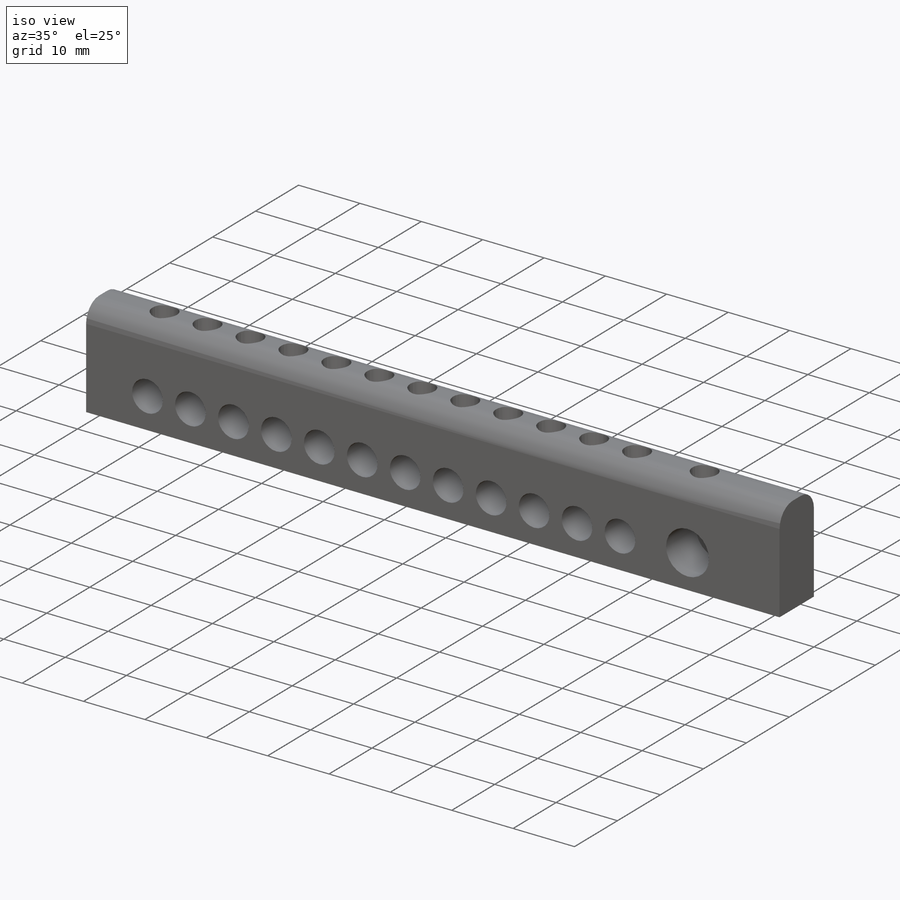
[diagram: iso view]
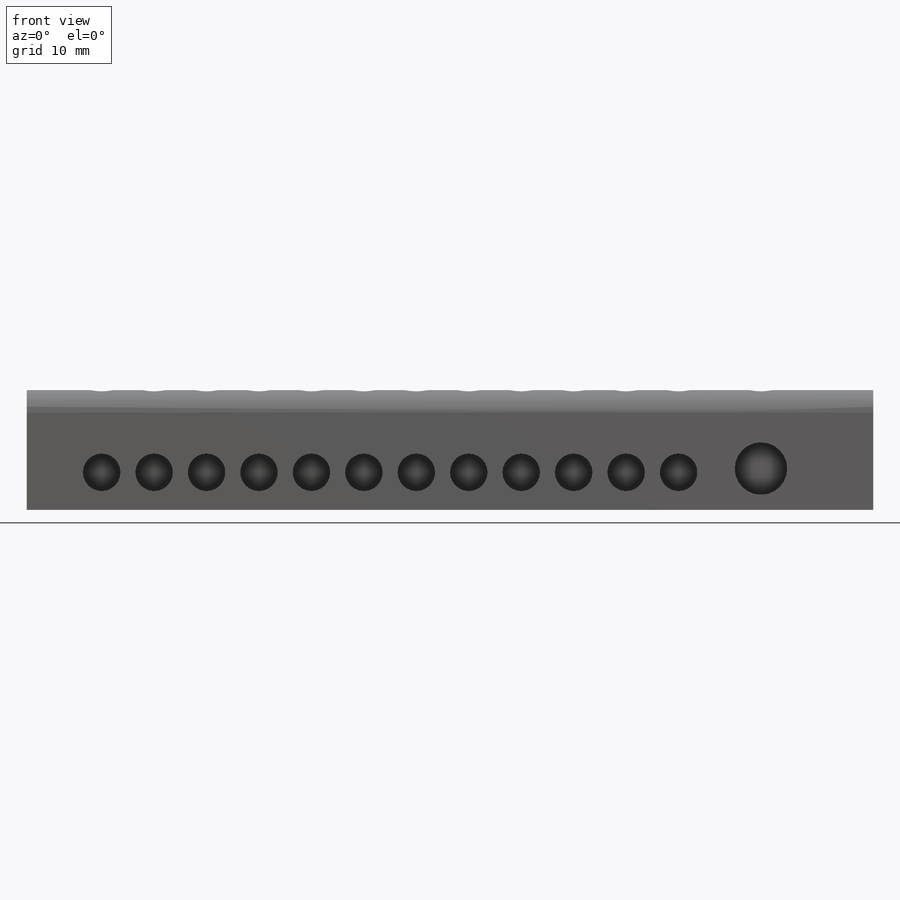
[diagram: front view]
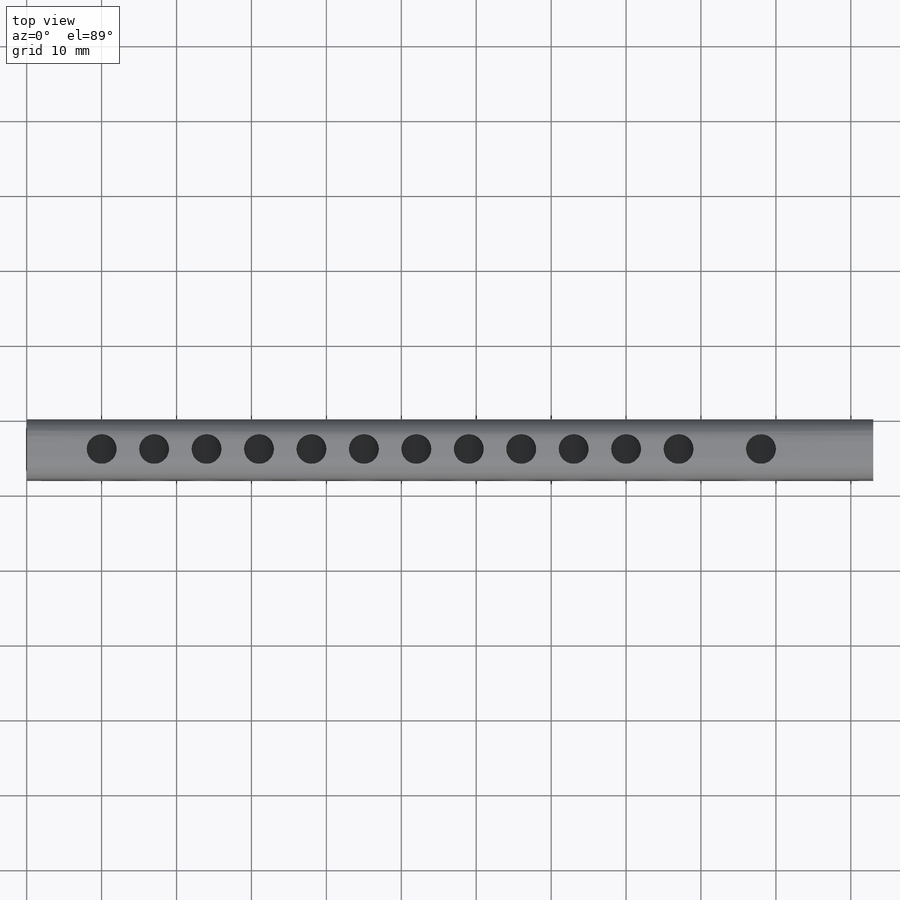
[diagram: top view]
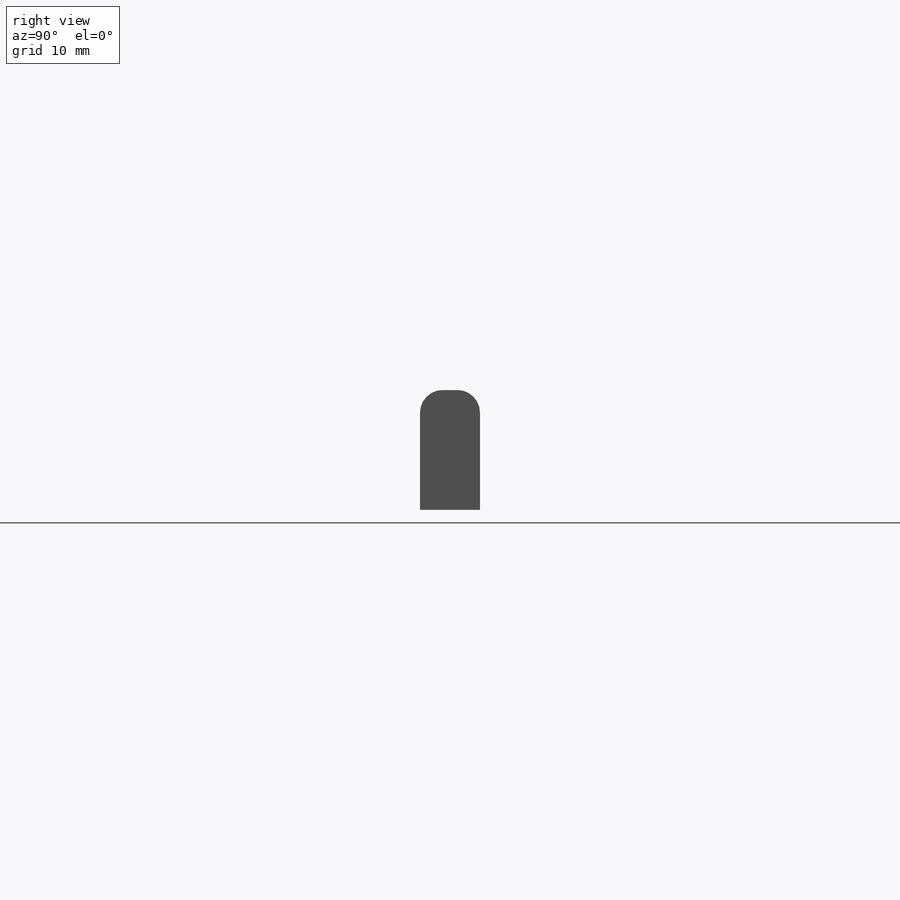
[diagram: right view]
SOLIDWORKS PART (.sldprt)
format: sldprt  version: not decoded by parser v0  size: 352,256 bytes
history: native  units: mm
features: sketch x5, cut_extrude x4, plane x3, pattern_linear x2, material x1, extrude x1, fillet x1 (+13 scaffold rows collapsed)
feature tree (30):
  scaffold x13  (default folders/planes/origin — collapsed)
  material  "Matériau <non spécifié>"
  plane  "Plan de face"
  plane  "Plan de dessus"
  plane  "Plan de droite"
  sketch  "Esquisse1"  dims[D1=113.0mm D2=16.0mm]
  extrude  "Extrusion1"  Depth=8mm
  fillet  "Congé2"  Radius=3mm
  sketch  "Esquisse2"  dims[D1=5.0mm D2=5.0mm D3=10.0mm]
  cut_extrude  "Extrusion2"  Depth=7mm
  pattern_linear  "Répétition linéaire1"  Count1=12 Count2=1 Spacing1=7mm Spacing2=10mm
  sketch  "Esquisse3"  dims[D1=7.0mm D2=15.0mm D3=5.5mm]
  cut_extrude  "Extrusion3"  Depth=7mm
  sketch  "Esquisse4"  dims[D1=4.0mm D2=10.0mm D3=4.0mm]
  cut_extrude  "Extrusion4"  Depth=10mm
  pattern_linear  "Répétition linéaire2"  Count1=12 Count2=1 Spacing1=7mm Spacing2=10mm
  sketch  "Esquisse5"  dims[D1=4.0mm D2=15.0mm D3=4.0mm]
  cut_extrude  "Extrusion5"  Depth=10mm
decode coverage: 13 of 13 modeling features carry decoded parameters
note: suppression state not decoded; provenance and decode notes live in map.json
